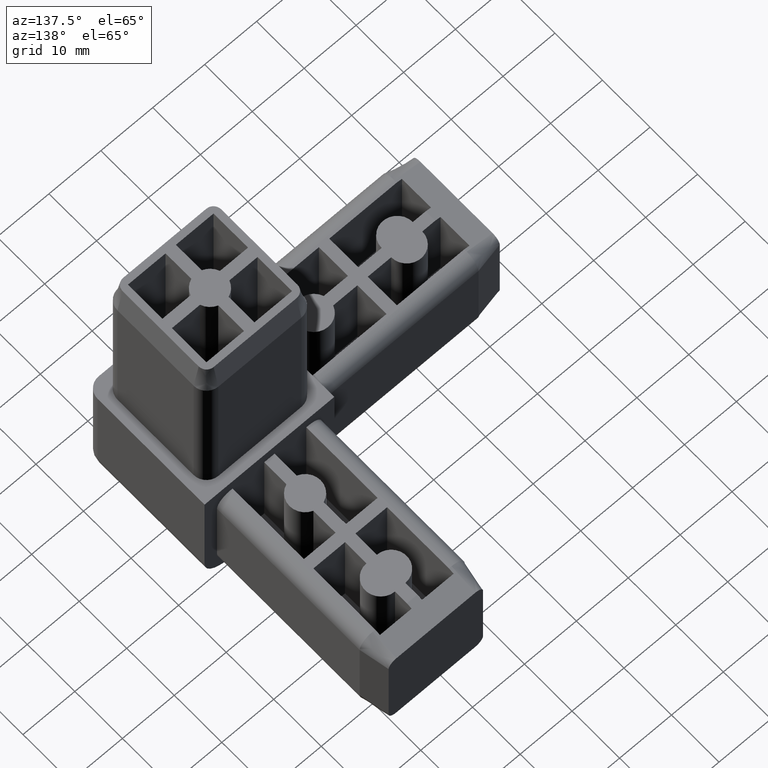
[diagram: clean part render]
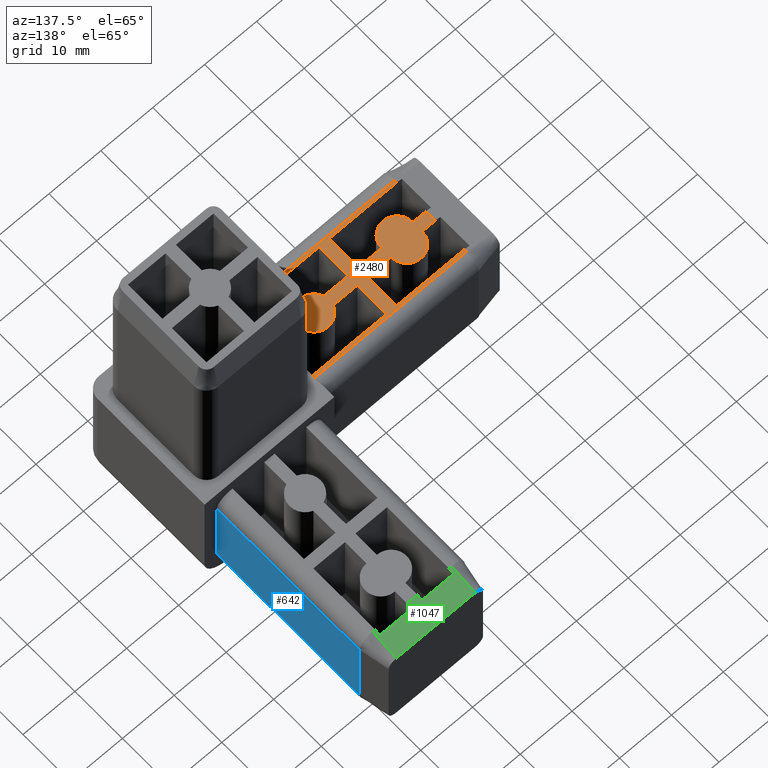
[diagram: same view with three faces highlighted in distinct colors, each labeled with its STEP entity id]
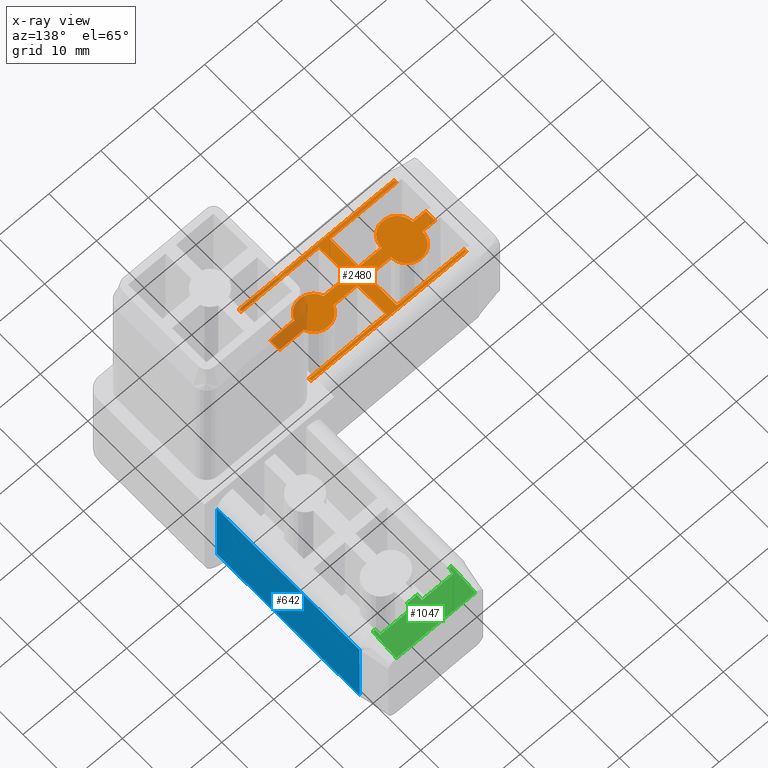
[diagram: x-ray of the same camera — body ghosted, the three highlighted faces saturated]
A machine part, auxiliary view with three faces highlighted in distinct colors.
The next image is the same camera in x-ray (body ghosted, the three faces saturated) — at least one of them is partly hidden behind the body in this view.
Their STEP definitions:

[orange] entity #2480 — the highlighted planar face has unit normal (0, 0, 1).
#2226=CARTESIAN_POINT('',(-30.0,-20.100000000000136,-2.400000000000091));
#2227=VERTEX_POINT('',#2226);
#2228=CARTESIAN_POINT('',(0.0,-20.100000000000136,-2.400000000000091));
#2229=VERTEX_POINT('',#2228);
#2230=CARTESIAN_POINT('',(-30.0,-20.100000000000136,-2.400000000000091));
#2231=DIRECTION('',(1.0,0.0,0.0));
#2232=VECTOR('',#2231,30.0);
#2233=LINE('',#2230,#2232);
#2234=EDGE_CURVE('',#2227,#2229,#2233,.T.);
#2254=CARTESIAN_POINT('',(-38.500120002905760,-24.620120002991257,-2.400000000000091));
#2255=DIRECTION('',(0.0,0.0,1.0));
#2256=DIRECTION('',(1.0,0.0,0.0));
#2257=AXIS2_PLACEMENT_3D('',#2254,#2255,#2256);
#2258=PLANE('',#2257);
#2259=CARTESIAN_POINT('',(0.0,-4.900000000000091,-2.400000000000091));
#2260=VERTEX_POINT('',#2259);
#2261=CARTESIAN_POINT('',(-30.0,-4.900000000000091,-2.400000000000091));
#2262=VERTEX_POINT('',#2261);
#2263=CARTESIAN_POINT('',(0.0,-4.900000000000091,-2.400000000000091));
#2264=DIRECTION('',(-1.0,0.0,0.0));
#2265=VECTOR('',#2264,30.0);
#2266=LINE('',#2263,#2265);
#2267=EDGE_CURVE('',#2260,#2262,#2266,.T.);
#2268=ORIENTED_EDGE('',*,*,#2267,.T.);
#2269=CARTESIAN_POINT('',(-30.0,-5.400000000000205,-2.400000000000091));
#2270=VERTEX_POINT('',#2269);
#2271=CARTESIAN_POINT('',(-30.0,-4.900000000000091,-2.400000000000091));
#2272=DIRECTION('',(0.0,-1.0,0.0));
#2273=VECTOR('',#2272,0.500000000000114);
#2274=LINE('',#2271,#2273);
#2275=EDGE_CURVE('',#2262,#2270,#2274,.T.);
#2276=ORIENTED_EDGE('',*,*,#2275,.T.);
#2277=CARTESIAN_POINT('',(-17.0,-5.400000000000205,-2.400000000000091));
#2278=VERTEX_POINT('',#2277);
#2279=CARTESIAN_POINT('',(-30.0,-5.400000000000205,-2.400000000000091));
#2280=DIRECTION('',(1.0,0.0,0.0));
#2281=VECTOR('',#2280,13.0);
#2282=LINE('',#2279,#2281);
#2283=EDGE_CURVE('',#2270,#2278,#2282,.T.);
#2284=ORIENTED_EDGE('',*,*,#2283,.T.);
#2285=CARTESIAN_POINT('',(-17.0,-11.500000000000114,-2.400000000000091));
#2286=VERTEX_POINT('',#2285);
#2287=CARTESIAN_POINT('',(-17.0,-11.500000000000114,-2.400000000000091));
#2288=DIRECTION('',(0.0,1.0,0.0));
#2289=VECTOR('',#2288,6.099999999999909);
#2290=LINE('',#2287,#2289);
#2291=EDGE_CURVE('',#2286,#2278,#2290,.T.);
#2292=ORIENTED_EDGE('',*,*,#2291,.F.);
#2293=CARTESIAN_POINT('',(-21.500000000000000,-11.500000000000114,-2.400000000000091));
#2294=VERTEX_POINT('',#2293);
#2295=CARTESIAN_POINT('',(-21.500000000000000,-11.500000000000114,-2.400000000000091));
#2296=DIRECTION('',(1.0,0.0,0.0));
#2297=VECTOR('',#2296,4.500000000000000);
#2298=LINE('',#2295,#2297);
#2299=EDGE_CURVE('',#2294,#2286,#2298,.T.);
#2300=ORIENTED_EDGE('',*,*,#2299,.F.);
#2301=CARTESIAN_POINT('',(-27.500000000000000,-11.500000000000114,-2.400000000000091));
#2302=VERTEX_POINT('',#2301);
#2303=CARTESIAN_POINT('',(-24.500000000000000,-11.500000000000114,-2.400000000000091));
#2304=DIRECTION('',(0.0,0.0,1.0));
#2305=DIRECTION('',(1.0,0.0,0.0));
#2306=AXIS2_PLACEMENT_3D('',#2303,#2304,#2305);
#2307=CIRCLE('',#2306,3.0);
#2308=EDGE_CURVE('',#2294,#2302,#2307,.T.);
#2309=ORIENTED_EDGE('',*,*,#2308,.T.);
#2310=CARTESIAN_POINT('',(-30.0,-11.500000000000114,-2.400000000000091));
#2311=VERTEX_POINT('',#2310);
#2312=CARTESIAN_POINT('',(-30.0,-11.500000000000114,-2.400000000000091));
#2313=DIRECTION('',(1.0,0.0,0.0));
#2314=VECTOR('',#2313,2.500000000000000);
#2315=LINE('',#2312,#2314);
#2316=EDGE_CURVE('',#2311,#2302,#2315,.T.);
#2317=ORIENTED_EDGE('',*,*,#2316,.F.);
#2318=CARTESIAN_POINT('',(-30.0,-13.500000000000000,-2.400000000000091));
#2319=VERTEX_POINT('',#2318);
#2320=CARTESIAN_POINT('',(-30.0,-11.500000000000114,-2.400000000000091));
#2321=DIRECTION('',(0.0,-1.0,0.0));
#2322=VECTOR('',#2321,1.999999999999886);
#2323=LINE('',#2320,#2322);
#2324=EDGE_CURVE('',#2311,#2319,#2323,.T.);
#2325=ORIENTED_EDGE('',*,*,#2324,.T.);
#2326=CARTESIAN_POINT('',(-27.500000000000000,-13.500000000000000,-2.400000000000091));
#2327=VERTEX_POINT('',#2326);
#2328=CARTESIAN_POINT('',(-30.0,-13.500000000000000,-2.400000000000091));
#2329=DIRECTION('',(1.0,0.0,0.0));
#2330=VECTOR('',#2329,2.500000000000000);
#2331=LINE('',#2328,#2330);
#2332=EDGE_CURVE('',#2319,#2327,#2331,.T.);
#2333=ORIENTED_EDGE('',*,*,#2332,.T.);
#2334=CARTESIAN_POINT('',(-21.500000000000000,-13.500000000000000,-2.400000000000091));
#2335=VERTEX_POINT('',#2334);
#2336=CARTESIAN_POINT('',(-24.500000000000000,-13.500000000000000,-2.400000000000091));
#2337=DIRECTION('',(0.0,0.0,1.0));
#2338=DIRECTION('',(1.0,0.0,0.0));
#2339=AXIS2_PLACEMENT_3D('',#2336,#2337,#2338);
#2340=CIRCLE('',#2339,3.0);
#2341=EDGE_CURVE('',#2327,#2335,#2340,.T.);
#2342=ORIENTED_EDGE('',*,*,#2341,.T.);
#2343=CARTESIAN_POINT('',(-17.0,-13.500000000000000,-2.400000000000091));
#2344=VERTEX_POINT('',#2343);
#2345=CARTESIAN_POINT('',(-17.0,-13.500000000000000,-2.400000000000091));
#2346=DIRECTION('',(-1.0,0.0,0.0));
#2347=VECTOR('',#2346,4.500000000000000);
#2348=LINE('',#2345,#2347);
#2349=EDGE_CURVE('',#2344,#2335,#2348,.T.);
#2350=ORIENTED_EDGE('',*,*,#2349,.F.);
#2351=CARTESIAN_POINT('',(-17.0,-19.600000000000136,-2.400000000000091));
#2352=VERTEX_POINT('',#2351);
#2353=CARTESIAN_POINT('',(-17.0,-19.600000000000136,-2.400000000000091));
#2354=DIRECTION('',(0.0,1.0,0.0));
#2355=VECTOR('',#2354,6.100000000000136);
#2356=LINE('',#2353,#2355);
#2357=EDGE_CURVE('',#2352,#2344,#2356,.T.);
#2358=ORIENTED_EDGE('',*,*,#2357,.F.);
#2359=CARTESIAN_POINT('',(-30.0,-19.600000000000136,-2.400000000000091));
#2360=VERTEX_POINT('',#2359);
#2361=CARTESIAN_POINT('',(-30.0,-19.600000000000136,-2.400000000000091));
#2362=DIRECTION('',(1.0,0.0,0.0));
#2363=VECTOR('',#2362,13.0);
#2364=LINE('',#2361,#2363);
#2365=EDGE_CURVE('',#2360,#2352,#2364,.T.);
#2366=ORIENTED_EDGE('',*,*,#2365,.F.);
#2367=CARTESIAN_POINT('',(-30.0,-19.600000000000136,-2.400000000000091));
#2368=DIRECTION('',(0.0,-1.0,0.0));
#2369=VECTOR('',#2368,0.500000000000000);
#2370=LINE('',#2367,#2369);
#2371=EDGE_CURVE('',#2360,#2227,#2370,.T.);
#2372=ORIENTED_EDGE('',*,*,#2371,.T.);
#2373=ORIENTED_EDGE('',*,*,#2234,.T.);
#2374=CARTESIAN_POINT('',(0.0,-19.600000000000136,-2.400000000000091));
#2375=VERTEX_POINT('',#2374);
#2376=CARTESIAN_POINT('',(0.0,-20.100000000000136,-2.400000000000091));
#2377=DIRECTION('',(0.0,1.0,0.0));
#2378=VECTOR('',#2377,0.500000000000000);
#2379=LINE('',#2376,#2378);
#2380=EDGE_CURVE('',#2229,#2375,#2379,.T.);
#2381=ORIENTED_EDGE('',*,*,#2380,.T.);
#2382=CARTESIAN_POINT('',(-15.0,-19.600000000000136,-2.400000000000091));
#2383=VERTEX_POINT('',#2382);
#2384=CARTESIAN_POINT('',(0.0,-19.600000000000136,-2.400000000000091));
#2385=DIRECTION('',(-1.0,0.0,0.0));
#2386=VECTOR('',#2385,15.0);
#2387=LINE('',#2384,#2386);
#2388=EDGE_CURVE('',#2375,#2383,#2387,.T.);
#2389=ORIENTED_EDGE('',*,*,#2388,.T.);
#2390=CARTESIAN_POINT('',(-15.0,-13.500000000000000,-2.400000000000091));
#2391=VERTEX_POINT('',#2390);
#2392=CARTESIAN_POINT('',(-15.0,-13.500000000000000,-2.400000000000091));
#2393=DIRECTION('',(0.0,-1.0,0.0));
#2394=VECTOR('',#2393,6.100000000000136);
#2395=LINE('',#2392,#2394);
#2396=EDGE_CURVE('',#2391,#2383,#2395,.T.);
#2397=ORIENTED_EDGE('',*,*,#2396,.F.);
#2398=CARTESIAN_POINT('',(-10.328427124746895,-13.500000000000000,-2.400000000000091));
#2399=VERTEX_POINT('',#2398);
#2400=CARTESIAN_POINT('',(-10.328427124746895,-13.500000000000000,-2.400000000000091));
#2401=DIRECTION('',(-1.0,0.0,0.0));
#2402=VECTOR('',#2401,4.671572875253105);
#2403=LINE('',#2400,#2402);
#2404=EDGE_CURVE('',#2399,#2391,#2403,.T.);
#2405=ORIENTED_EDGE('',*,*,#2404,.F.);
#2406=CARTESIAN_POINT('',(-4.671572875254924,-13.500000000000000,-2.400000000000091));
#2407=VERTEX_POINT('',#2406);
#2408=CARTESIAN_POINT('',(-7.500000000000910,-12.499999999999659,-2.400000000000091));
#2409=DIRECTION('',(0.0,0.0,1.0));
#2410=DIRECTION('',(-0.942809041582026,-0.333333333333438,0.0));
#2411=AXIS2_PLACEMENT_3D('',#2408,#2409,#2410);
#2412=CIRCLE('',#2411,2.999999999999999);
#2413=EDGE_CURVE('',#2399,#2407,#2412,.T.);
#2414=ORIENTED_EDGE('',*,*,#2413,.T.);
#2415=CARTESIAN_POINT('',(0.0,-13.500000000000000,-2.400000000000091));
#2416=VERTEX_POINT('',#2415);
#2417=CARTESIAN_POINT('',(0.0,-13.500000000000000,-2.400000000000091));
#2418=DIRECTION('',(-1.0,0.0,0.0));
#2419=VECTOR('',#2418,4.671572875254924);
#2420=LINE('',#2417,#2419);
#2421=EDGE_CURVE('',#2416,#2407,#2420,.T.);
#2422=ORIENTED_EDGE('',*,*,#2421,.F.);
#2423=CARTESIAN_POINT('',(0.0,-11.500000000000114,-2.400000000000091));
#2424=VERTEX_POINT('',#2423);
#2425=CARTESIAN_POINT('',(0.0,-13.500000000000000,-2.400000000000091));
#2426=DIRECTION('',(0.0,1.0,0.0));
#2427=VECTOR('',#2426,1.999999999999886);
#2428=LINE('',#2425,#2427);
#2429=EDGE_CURVE('',#2416,#2424,#2428,.T.);
#2430=ORIENTED_EDGE('',*,*,#2429,.T.);
#2431=CARTESIAN_POINT('',(-4.671572875254697,-11.500000000000114,-2.400000000000091));
#2432=VERTEX_POINT('',#2431);
#2433=CARTESIAN_POINT('',(0.0,-11.500000000000114,-2.400000000000091));
#2434=DIRECTION('',(-1.0,0.0,0.0));
#2435=VECTOR('',#2434,4.671572875254697);
#2436=LINE('',#2433,#2435);
#2437=EDGE_CURVE('',#2424,#2432,#2436,.T.);
#2438=ORIENTED_EDGE('',*,*,#2437,.T.);
#2439=CARTESIAN_POINT('',(-10.328427124746895,-11.500000000000114,-2.400000000000091));
#2440=VERTEX_POINT('',#2439);
#2441=CARTESIAN_POINT('',(-7.500000000000911,-12.500000000000457,-2.400000000000092));
#2442=DIRECTION('',(0.0,0.0,1.000000000000000));
#2443=DIRECTION('',(0.942809041582026,0.333333333333439,0.0));
#2444=AXIS2_PLACEMENT_3D('',#2441,#2442,#2443);
#2445=CIRCLE('',#2444,3.0);
#2446=EDGE_CURVE('',#2432,#2440,#2445,.T.);
#2447=ORIENTED_EDGE('',*,*,#2446,.T.);
#2448=CARTESIAN_POINT('',(-15.0,-11.500000000000114,-2.400000000000091));
#2449=VERTEX_POINT('',#2448);
#2450=CARTESIAN_POINT('',(-10.328427124746895,-11.500000000000114,-2.400000000000091));
#2451=DIRECTION('',(-1.0,0.0,0.0));
#2452=VECTOR('',#2451,4.671572875253105);
#2453=LINE('',#2450,#2452);
#2454=EDGE_CURVE('',#2440,#2449,#2453,.T.);
#2455=ORIENTED_EDGE('',*,*,#2454,.T.);
#2456=CARTESIAN_POINT('',(-15.0,-5.400000000000205,-2.400000000000091));
#2457=VERTEX_POINT('',#2456);
#2458=CARTESIAN_POINT('',(-15.0,-5.400000000000205,-2.400000000000091));
#2459=DIRECTION('',(0.0,-1.0,0.0));
#2460=VECTOR('',#2459,6.099999999999909);
#2461=LINE('',#2458,#2460);
#2462=EDGE_CURVE('',#2457,#2449,#2461,.T.);
#2463=ORIENTED_EDGE('',*,*,#2462,.F.);
#2464=CARTESIAN_POINT('',(0.0,-5.400000000000205,-2.400000000000091));
#2465=VERTEX_POINT('',#2464);
#2466=CARTESIAN_POINT('',(0.0,-5.400000000000205,-2.400000000000091));
#2467=DIRECTION('',(-1.0,0.0,0.0));
#2468=VECTOR('',#2467,15.0);
#2469=LINE('',#2466,#2468);
#2470=EDGE_CURVE('',#2465,#2457,#2469,.T.);
#2471=ORIENTED_EDGE('',*,*,#2470,.F.);
#2472=CARTESIAN_POINT('',(0.0,-5.400000000000205,-2.400000000000091));
#2473=DIRECTION('',(0.0,1.0,0.0));
#2474=VECTOR('',#2473,0.500000000000114);
#2475=LINE('',#2472,#2474);
#2476=EDGE_CURVE('',#2465,#2260,#2475,.T.);
#2477=ORIENTED_EDGE('',*,*,#2476,.T.);
#2478=EDGE_LOOP('',(#2268,#2276,#2284,#2292,#2300,#2309,#2317,#2325,#2333,#2342,#2350,#2358,#2366,#2372,#2373,#2381,#2389,#2397,#2405,#2414,#2422,#2430,#2438,#2447,#2455,#2463,#2471,#2477));
#2479=FACE_OUTER_BOUND('',#2478,.T.);
#2480=ADVANCED_FACE('',(#2479),#2258,.T.);

[blue] entity #642 — the highlighted planar face has unit normal (1, 0, 0).
#585=CARTESIAN_POINT('',(22.599999999999909,30.0,-20.100000000000193));
#586=VERTEX_POINT('',#585);
#594=CARTESIAN_POINT('',(22.599999999999909,0.0,-20.100000000000193));
#595=VERTEX_POINT('',#594);
#596=CARTESIAN_POINT('',(22.599999999999909,0.0,-20.100000000000193));
#597=DIRECTION('',(0.0,1.0,0.0));
#598=VECTOR('',#597,30.0);
#599=LINE('',#596,#598);
#600=EDGE_CURVE('',#595,#586,#599,.T.);
#612=CARTESIAN_POINT('',(22.599999999999909,0.0,-22.600000000000193));
#613=DIRECTION('',(1.0,0.0,0.0));
#614=DIRECTION('',(0.0,1.0,0.0));
#615=AXIS2_PLACEMENT_3D('',#612,#613,#614);
#616=PLANE('',#615);
#617=ORIENTED_EDGE('',*,*,#600,.T.);
#618=CARTESIAN_POINT('',(22.599999999999909,30.0,-4.900000000000091));
#619=VERTEX_POINT('',#618);
#620=CARTESIAN_POINT('',(22.599999999999909,30.0,-20.100000000000193));
#621=DIRECTION('',(0.0,0.0,1.0));
#622=VECTOR('',#621,15.200000000000102);
#623=LINE('',#620,#622);
#624=EDGE_CURVE('',#586,#619,#623,.T.);
#625=ORIENTED_EDGE('',*,*,#624,.T.);
#626=CARTESIAN_POINT('',(22.599999999999909,0.0,-4.900000000000091));
#627=VERTEX_POINT('',#626);
#628=CARTESIAN_POINT('',(22.599999999999909,0.0,-4.900000000000091));
#629=DIRECTION('',(0.0,1.0,0.0));
#630=VECTOR('',#629,30.0);
#631=LINE('',#628,#630);
#632=EDGE_CURVE('',#627,#619,#631,.T.);
#633=ORIENTED_EDGE('',*,*,#632,.F.);
#634=CARTESIAN_POINT('',(22.599999999999909,0.0,-20.100000000000193));
#635=DIRECTION('',(0.0,0.0,1.0));
#636=VECTOR('',#635,15.200000000000102);
#637=LINE('',#634,#636);
#638=EDGE_CURVE('',#595,#627,#637,.T.);
#639=ORIENTED_EDGE('',*,*,#638,.F.);
#640=EDGE_LOOP('',(#617,#625,#633,#639));
#641=FACE_OUTER_BOUND('',#640,.T.);
#642=ADVANCED_FACE('',(#641),#616,.T.);

[green] entity #1047 — the highlighted face is a freeform B-spline surface patch.
#444=CARTESIAN_POINT('',(20.099999999999909,35.0,-3.400000014901252));
#445=VERTEX_POINT('',#444);
#446=CARTESIAN_POINT('',(4.900000000000091,35.0,-3.400000000000091));
#447=VERTEX_POINT('',#446);
#448=CARTESIAN_POINT('',(20.099999999999909,35.0,-3.400000014901252));
#449=DIRECTION('',(-1.0,0.0,0.0));
#450=VECTOR('',#449,15.199999999999818);
#451=LINE('',#448,#450);
#452=EDGE_CURVE('',#445,#447,#451,.T.);
#658=CARTESIAN_POINT('',(20.099999999999909,30.0,-2.400000000000091));
#659=VERTEX_POINT('',#658);
#682=CARTESIAN_POINT('',(19.599999999999909,30.0,-2.400000000000091));
#683=VERTEX_POINT('',#682);
#684=CARTESIAN_POINT('',(20.099999999999909,30.0,-2.400000000000091));
#685=DIRECTION('',(-1.0,0.0,0.0));
#686=VECTOR('',#685,0.500000000000000);
#687=LINE('',#684,#686);
#688=EDGE_CURVE('',#659,#683,#687,.T.);
#723=CARTESIAN_POINT('',(13.500000000000000,30.0,-2.400000000000091));
#724=VERTEX_POINT('',#723);
#731=CARTESIAN_POINT('',(11.500000000000000,30.0,-2.400000000000091));
#732=VERTEX_POINT('',#731);
#733=CARTESIAN_POINT('',(13.500000000000000,30.0,-2.400000000000091));
#734=DIRECTION('',(-1.0,0.0,0.0));
#735=VECTOR('',#734,2.0);
#736=LINE('',#733,#735);
#737=EDGE_CURVE('',#724,#732,#736,.T.);
#772=CARTESIAN_POINT('',(5.400000000000091,30.0,-2.400000000000091));
#773=VERTEX_POINT('',#772);
#780=CARTESIAN_POINT('',(4.900000000000091,30.0,-2.400000000000091));
#781=VERTEX_POINT('',#780);
#782=CARTESIAN_POINT('',(5.400000000000091,30.0,-2.400000000000091));
#783=DIRECTION('',(-1.0,0.0,0.0));
#784=VECTOR('',#783,0.500000000000000);
#785=LINE('',#782,#784);
#786=EDGE_CURVE('',#773,#781,#785,.T.);
#956=CARTESIAN_POINT('',(4.900000000000091,30.0,-2.400000000000091));
#957=DIRECTION('',(0.0,0.980580675128928,-0.196116137948144));
#958=VECTOR('',#957,5.099019516515143);
#959=LINE('',#956,#958);
#960=EDGE_CURVE('',#781,#447,#959,.T.);
#973=CARTESIAN_POINT('',(20.099999999999909,35.0,-3.400000014901252));
#974=CARTESIAN_POINT('',(20.099999999999909,33.333333333333336,-3.066666676600865));
#975=CARTESIAN_POINT('',(20.099999999999909,31.666666666666668,-2.733333338300478));
#976=CARTESIAN_POINT('',(20.099999999999909,30.0,-2.400000000000091));
#977=CARTESIAN_POINT('',(15.033333333333303,35.0,-3.400000014901252));
#978=CARTESIAN_POINT('',(15.033333333333303,33.333333333333336,-3.066666676600865));
#979=CARTESIAN_POINT('',(15.033333333333303,31.666666666666668,-2.733333338300478));
#980=CARTESIAN_POINT('',(15.033333333333303,30.0,-2.400000000000091));
#981=CARTESIAN_POINT('',(9.966666666666697,35.0,-3.400000014901252));
#982=CARTESIAN_POINT('',(9.966666666666697,33.333333333333336,-3.066666676600865));
#983=CARTESIAN_POINT('',(9.966666666666697,31.666666666666668,-2.733333338300478));
#984=CARTESIAN_POINT('',(9.966666666666697,30.0,-2.400000000000091));
#985=CARTESIAN_POINT('',(4.900000000000091,35.0,-3.400000014901252));
#986=CARTESIAN_POINT('',(4.900000000000091,33.333333333333336,-3.066666676600865));
#987=CARTESIAN_POINT('',(4.900000000000091,31.666666666666668,-2.733333338300478));
#988=CARTESIAN_POINT('',(4.900000000000091,30.0,-2.400000000000091));
#989=B_SPLINE_SURFACE_WITH_KNOTS('',3,3,((#973,#977,#981,#985),(#974,#978,#982,#986),(#975,#979,#983,#987),(#976,#980,#984,#988)),.UNSPECIFIED.,.F.,.F.,.U.,(4,4),(4,4),(0.0,5.099019516515143),(0.0,15.199999999999818),.UNSPECIFIED.);
#990=ORIENTED_EDGE('',*,*,#960,.F.);
#991=ORIENTED_EDGE('',*,*,#786,.F.);
#992=CARTESIAN_POINT('',(5.400000000000091,31.0,-2.600000002980329));
#993=VERTEX_POINT('',#992);
#994=CARTESIAN_POINT('',(5.400000000000091,31.0,-2.600000002980330));
#995=DIRECTION('',(0.0,-0.980580675128927,0.196116137948151));
#996=VECTOR('',#995,1.019803903303030);
#997=LINE('',#994,#996);
#998=EDGE_CURVE('',#993,#773,#997,.T.);
#999=ORIENTED_EDGE('',*,*,#998,.F.);
#1000=CARTESIAN_POINT('',(11.500000000000000,31.0,-2.600000002980323));
#1001=VERTEX_POINT('',#1000);
#1002=CARTESIAN_POINT('',(11.500000000000000,31.0,-2.600000002980323));
#1003=DIRECTION('',(-1.0,0.0,0.0));
#1004=VECTOR('',#1003,6.099999999999909);
#1005=LINE('',#1002,#1004);
#1006=EDGE_CURVE('',#1001,#993,#1005,.T.);
#1007=ORIENTED_EDGE('',*,*,#1006,.F.);
#1008=CARTESIAN_POINT('',(11.500000000000000,30.0,-2.400000000000091));
#1009=DIRECTION('',(0.0,0.980580675128928,-0.196116137948144));
#1010=VECTOR('',#1009,1.019803903303029);
#1011=LINE('',#1008,#1010);
#1012=EDGE_CURVE('',#732,#1001,#1011,.T.);
#1013=ORIENTED_EDGE('',*,*,#1012,.F.);
#1014=ORIENTED_EDGE('',*,*,#737,.F.);
#1015=CARTESIAN_POINT('',(13.500000000000000,31.0,-2.600000002980329));
#1016=VERTEX_POINT('',#1015);
#1017=CARTESIAN_POINT('',(13.500000000000000,31.0,-2.600000002980330));
#1018=DIRECTION('',(0.0,-0.980580675128927,0.196116137948151));
#1019=VECTOR('',#1018,1.019803903303030);
#1020=LINE('',#1017,#1019);
#1021=EDGE_CURVE('',#1016,#724,#1020,.T.);
#1022=ORIENTED_EDGE('',*,*,#1021,.F.);
#1023=CARTESIAN_POINT('',(19.599999999999909,31.0,-2.600000002980323));
#1024=VERTEX_POINT('',#1023);
#1025=CARTESIAN_POINT('',(19.599999999999909,31.0,-2.600000002980323));
#1026=DIRECTION('',(-1.0,0.0,0.0));
#1027=VECTOR('',#1026,6.099999999999909);
#1028=LINE('',#1025,#1027);
#1029=EDGE_CURVE('',#1024,#1016,#1028,.T.);
#1030=ORIENTED_EDGE('',*,*,#1029,.F.);
#1031=CARTESIAN_POINT('',(19.599999999999909,30.0,-2.400000000000091));
#1032=DIRECTION('',(0.0,0.980580675128928,-0.196116137948144));
#1033=VECTOR('',#1032,1.019803903303029);
#1034=LINE('',#1031,#1033);
#1035=EDGE_CURVE('',#683,#1024,#1034,.T.);
#1036=ORIENTED_EDGE('',*,*,#1035,.F.);
#1037=ORIENTED_EDGE('',*,*,#688,.F.);
#1038=CARTESIAN_POINT('',(20.099999999999909,35.0,-3.400000014901252));
#1039=DIRECTION('',(0.0,-0.980580675128928,0.196116137948144));
#1040=VECTOR('',#1039,5.099019516515143);
#1041=LINE('',#1038,#1040);
#1042=EDGE_CURVE('',#445,#659,#1041,.T.);
#1043=ORIENTED_EDGE('',*,*,#1042,.F.);
#1044=ORIENTED_EDGE('',*,*,#452,.T.);
#1045=EDGE_LOOP('',(#990,#991,#999,#1007,#1013,#1014,#1022,#1030,#1036,#1037,#1043,#1044));
#1046=FACE_OUTER_BOUND('',#1045,.T.);
#1047=ADVANCED_FACE('',(#1046),#989,.F.);